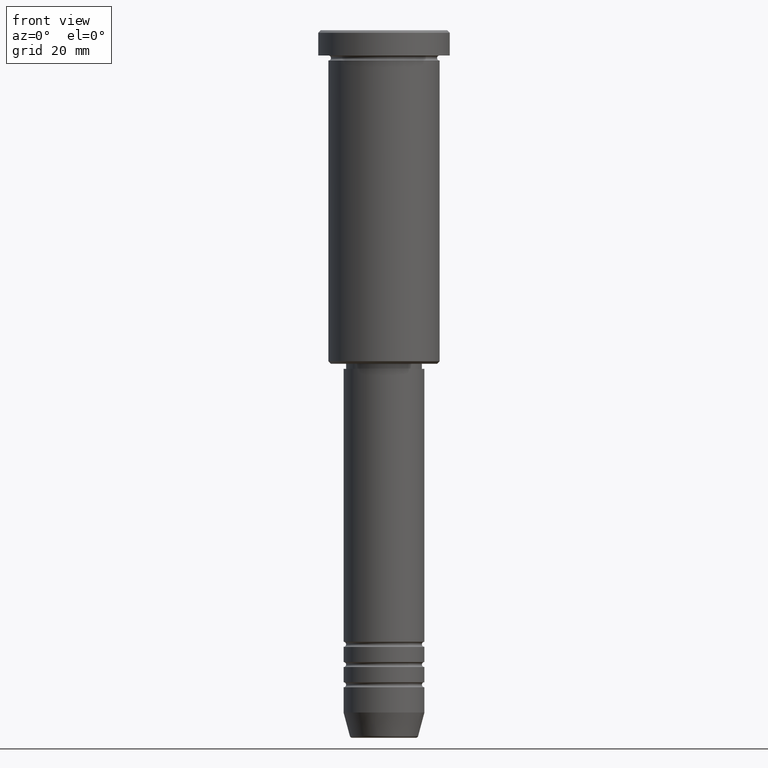
[diagram: clean part render]
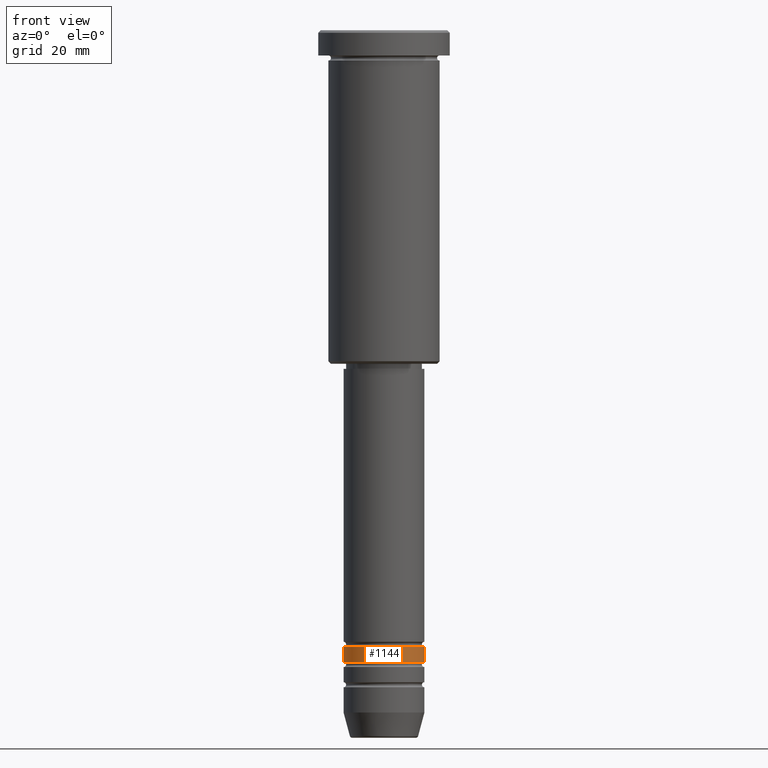
[diagram: same view with one face highlighted and labeled with its STEP entity id]
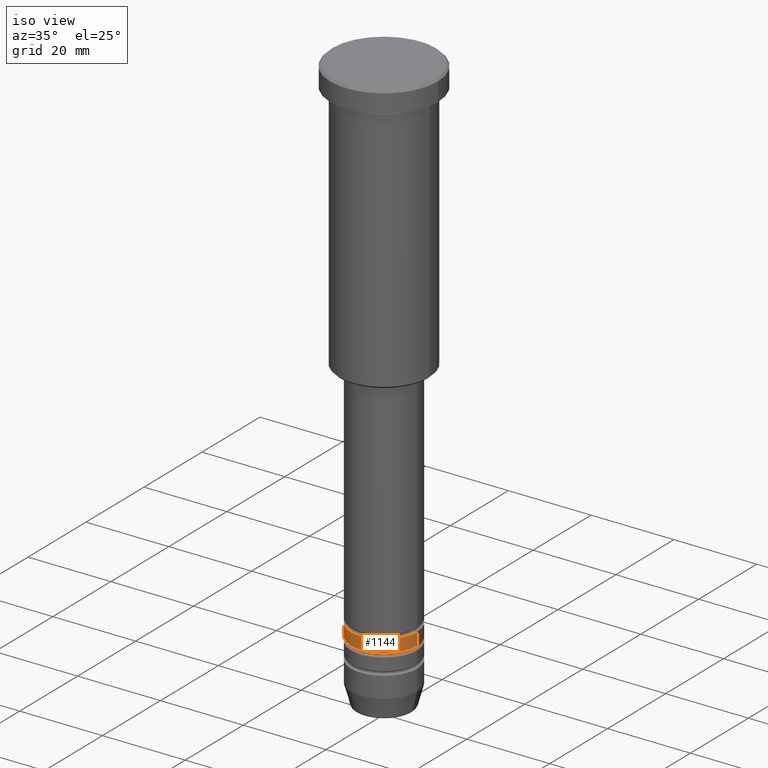
[diagram: same view with one face highlighted and labeled with its STEP entity id]
A machine part, front view. The second image highlights one B-rep face of the part: STEP entity #1144.
A second angle (iso view) of the same face is appended — the face is thin or edge-on in the first view.
In plain terms, the highlighted cylindrical surface (partial cylindrical patch) has radius 8 mm, axis along (-0, -0, 1).
Its self-contained STEP definition (entity closure, byte-faithful):
#12 = DIRECTION ( 'NONE',  ( -0.000000000000000000, -0.000000000000000000, 1.000000000000000000 ) ) ;
#32 = DIRECTION ( 'NONE',  ( 1.000000000000000000, 0.000000000000000000, 0.000000000000000000 ) ) ;
#63 = ORIENTED_EDGE ( 'NONE', *, *, #280, .F. ) ;
#74 = AXIS2_PLACEMENT_3D ( 'NONE', #202, #828, #32 ) ;
#87 = VERTEX_POINT ( 'NONE', #123 ) ;
#99 = CARTESIAN_POINT ( 'NONE',  ( -8.000000000000001776, 9.797174393178827630E-16, 0.000000000000000000 ) ) ;
#104 = EDGE_CURVE ( 'NONE', #449, #87, #616, .T. ) ;
#123 = CARTESIAN_POINT ( 'NONE',  ( 8.000000000000000000, 0.000000000000000000, -122.0000000000000000 ) ) ;
#137 = CYLINDRICAL_SURFACE ( 'NONE', #982, 8.000000000000001776 ) ;
#181 = VERTEX_POINT ( 'NONE', #651 ) ;
#199 = DIRECTION ( 'NONE',  ( -0.000000000000000000, -0.000000000000000000, 1.000000000000000000 ) ) ;
#202 = CARTESIAN_POINT ( 'NONE',  ( 0.000000000000000000, 0.000000000000000000, -122.0000000000000000 ) ) ;
#205 = EDGE_LOOP ( 'NONE', ( #63, #566, #941, #444 ) ) ;
#253 = AXIS2_PLACEMENT_3D ( 'NONE', #1180, #358, #890 ) ;
#280 = EDGE_CURVE ( 'NONE', #181, #449, #465, .T. ) ;
#358 = DIRECTION ( 'NONE',  ( -0.000000000000000000, -0.000000000000000000, 1.000000000000000000 ) ) ;
#444 = ORIENTED_EDGE ( 'NONE', *, *, #104, .F. ) ;
#449 = VERTEX_POINT ( 'NONE', #667 ) ;
#455 = EDGE_CURVE ( 'NONE', #1128, #87, #770, .T. ) ;
#465 = LINE ( 'NONE', #99, #739 ) ;
#486 = DIRECTION ( 'NONE',  ( -0.000000000000000000, -0.000000000000000000, 1.000000000000000000 ) ) ;
#566 = ORIENTED_EDGE ( 'NONE', *, *, #1062, .T. ) ;
#581 = CARTESIAN_POINT ( 'NONE',  ( 8.000000000000001776, 0.000000000000000000, 0.000000000000000000 ) ) ;
#590 = FACE_OUTER_BOUND ( 'NONE', #205, .T. ) ;
#616 = CIRCLE ( 'NONE', #74, 8.000000000000000000 ) ;
#651 = CARTESIAN_POINT ( 'NONE',  ( -8.000000000000003553, 9.797174393178829602E-16, -125.0000000000000000 ) ) ;
#656 = DIRECTION ( 'NONE',  ( 1.000000000000000000, 0.000000000000000000, 0.000000000000000000 ) ) ;
#667 = CARTESIAN_POINT ( 'NONE',  ( -8.000000000000000000, 9.797174393178827630E-16, -122.0000000000000000 ) ) ;
#737 = CIRCLE ( 'NONE', #253, 8.000000000000003553 ) ;
#739 = VECTOR ( 'NONE', #199, 1000.000000000000000 ) ;
#770 = LINE ( 'NONE', #581, #1092 ) ;
#828 = DIRECTION ( 'NONE',  ( -0.000000000000000000, -0.000000000000000000, 1.000000000000000000 ) ) ;
#835 = CARTESIAN_POINT ( 'NONE',  ( 0.000000000000000000, 0.000000000000000000, 0.000000000000000000 ) ) ;
#890 = DIRECTION ( 'NONE',  ( 1.000000000000000000, 0.000000000000000000, 0.000000000000000000 ) ) ;
#941 = ORIENTED_EDGE ( 'NONE', *, *, #455, .T. ) ;
#982 = AXIS2_PLACEMENT_3D ( 'NONE', #835, #12, #656 ) ;
#1062 = EDGE_CURVE ( 'NONE', #181, #1128, #737, .T. ) ;
#1092 = VECTOR ( 'NONE', #486, 1000.000000000000000 ) ;
#1106 = CARTESIAN_POINT ( 'NONE',  ( 8.000000000000003553, 0.000000000000000000, -125.0000000000000000 ) ) ;
#1128 = VERTEX_POINT ( 'NONE', #1106 ) ;
#1144 = ADVANCED_FACE ( 'NONE', ( #590 ), #137, .T. ) ;
#1180 = CARTESIAN_POINT ( 'NONE',  ( 0.000000000000000000, 0.000000000000000000, -125.0000000000000000 ) ) ;